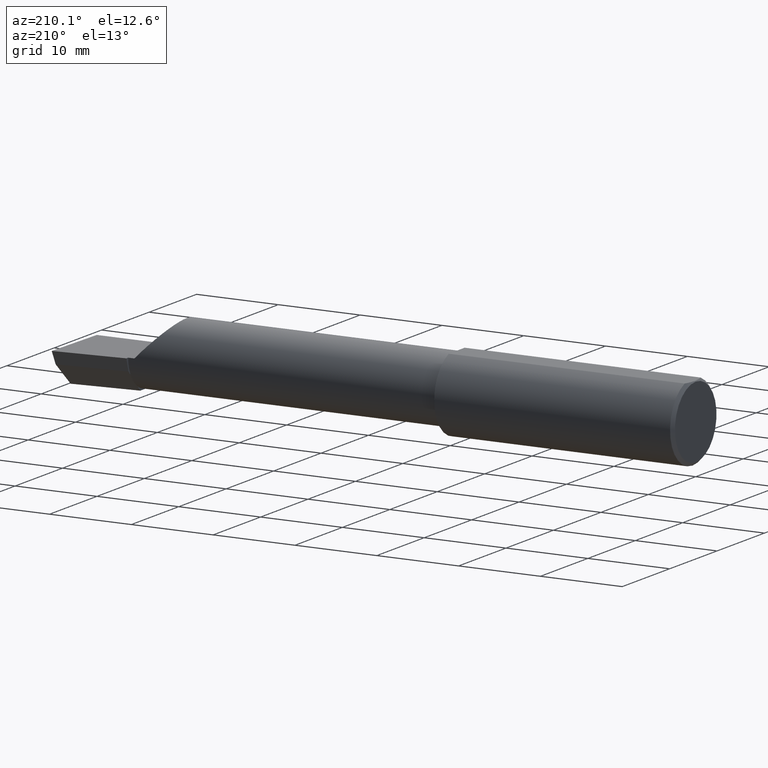
[diagram: clean part render]
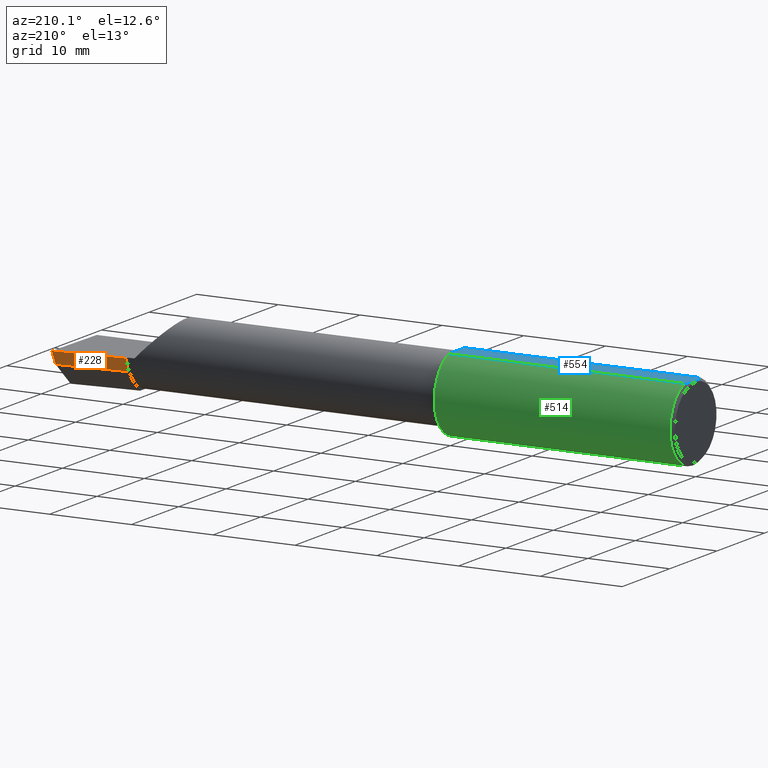
[diagram: same view with three faces highlighted in distinct colors, each labeled with its STEP entity id]
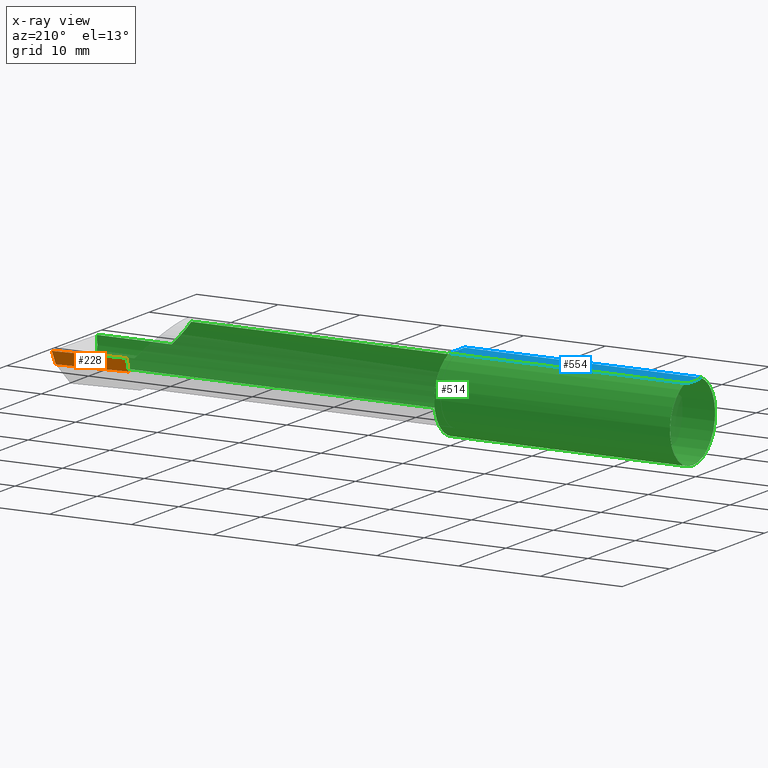
[diagram: x-ray of the same camera — body ghosted, the three highlighted faces saturated]
A machine part, auxiliary view with three faces highlighted in distinct colors.
The next image is the same camera in x-ray (body ghosted, the three faces saturated) — at least one of them is partly hidden behind the body in this view.
Their STEP definitions:

[orange] entity #228 — the highlighted planar face has unit normal (-0.0917, 0.9519, -0.2924).
#15 = DIRECTION ( 'NONE',  ( 0.9953961983671787417, 0.09584575252022435599, -1.409044964823803883E-16 ) ) ;
#30 = EDGE_LOOP ( 'NONE', ( #593, #498, #125, #168 ) ) ;
#54 = CARTESIAN_POINT ( 'NONE',  ( 3.000000000000013323, 0.1706500000000293615, 9.155799222047003664E-14 ) ) ;
#69 = DIRECTION ( 'NONE',  ( -1.671023757235059908E-18, -0.2936076258024052921, -0.9559260233253797923 ) ) ;
#78 = LINE ( 'NONE', #395, #242 ) ;
#84 = DIRECTION ( 'NONE',  ( 0.0000000000000000000, 0.2936076258024052366, 0.9559260233253797923 ) ) ;
#85 = VERTEX_POINT ( 'NONE', #253 ) ;
#91 = AXIS2_PLACEMENT_3D ( 'NONE', #521, #424, #84 ) ;
#102 = LINE ( 'NONE', #379, #212 ) ;
#104 = CARTESIAN_POINT ( 'NONE',  ( 2.992127980275562482, 0.1514633278254525761, -0.05999999999999999778 ) ) ;
#119 = EDGE_CURVE ( 'NONE', #153, #142, #411, .T. ) ;
#125 = ORIENTED_EDGE ( 'NONE', *, *, #515, .F. ) ;
#127 = CARTESIAN_POINT ( 'NONE',  ( 3.000188977433813520, 0.1711105994646681117, 0.001440373173037378914 ) ) ;
#128 = CARTESIAN_POINT ( 'NONE',  ( 2.659999999999999698, 0.1346188438362104778, -0.01072093908174515803 ) ) ;
#142 = VERTEX_POINT ( 'NONE', #54 ) ;
#145 = PLANE ( 'NONE',  #91 ) ;
#153 = VERTEX_POINT ( 'NONE', #104 ) ;
#168 = ORIENTED_EDGE ( 'NONE', *, *, #382, .T. ) ;
#212 = VECTOR ( 'NONE', #457, 39.37007874015748854 ) ;
#228 = ADVANCED_FACE ( 'NONE', ( #408 ), #145, .T. ) ;
#242 = VECTOR ( 'NONE', #15, 39.37007874015748143 ) ;
#253 = CARTESIAN_POINT ( 'NONE',  ( 2.659999999999999698, 0.1379117236128415691, 3.606893054134847731E-16 ) ) ;
#306 = VECTOR ( 'NONE', #69, 39.37007874015748854 ) ;
#314 = EDGE_CURVE ( 'NONE', #153, #324, #102, .T. ) ;
#324 = VERTEX_POINT ( 'NONE', #484 ) ;
#325 = DIRECTION ( 'NONE',  ( 0.1240019227989395123, 0.3022330132596639518, 0.9451342385281308323 ) ) ;
#342 = VECTOR ( 'NONE', #325, 39.37007874015748854 ) ;
#379 = CARTESIAN_POINT ( 'NONE',  ( 3.011712141217646188, 0.1533490680423129637, -0.06000000000000001166 ) ) ;
#382 = EDGE_CURVE ( 'NONE', #85, #142, #78, .T. ) ;
#395 = CARTESIAN_POINT ( 'NONE',  ( 0.8393181374772645809, -0.03739999999999999575, 2.375616991505627107E-16 ) ) ;
#408 = FACE_OUTER_BOUND ( 'NONE', #30, .T. ) ;
#411 = LINE ( 'NONE', #127, #342 ) ;
#424 = DIRECTION ( 'NONE',  ( -0.09165774897393341725, 0.9519021185660616613, -0.2923717047227295529 ) ) ;
#433 = LINE ( 'NONE', #128, #306 ) ;
#457 = DIRECTION ( 'NONE',  ( -0.9953961983671800740, -0.09584575252021031166, 0.0000000000000000000 ) ) ;
#484 = CARTESIAN_POINT ( 'NONE',  ( 2.659999999999999698, 0.1194830407249523191, -0.06000000000000001860 ) ) ;
#498 = ORIENTED_EDGE ( 'NONE', *, *, #314, .T. ) ;
#515 = EDGE_CURVE ( 'NONE', #85, #324, #433, .T. ) ;
#521 = CARTESIAN_POINT ( 'NONE',  ( 3.009953961983671267, 0.1716084575252019573, -6.829619984160658046E-17 ) ) ;
#593 = ORIENTED_EDGE ( 'NONE', *, *, #119, .F. ) ;

[blue] entity #554 — the highlighted planar face has unit normal (0, -0, -1).
#36 = ORIENTED_EDGE ( 'NONE', *, *, #568, .F. ) ;
#47 = FACE_OUTER_BOUND ( 'NONE', #541, .T. ) ;
#51 = CARTESIAN_POINT ( 'NONE',  ( 0.003000000000000218638, 2.334609607045083916E-17, 0.1753499999999999781 ) ) ;
#64 = B_SPLINE_CURVE_WITH_KNOTS ( 'NONE', 3,
 ( #130, #415, #506, #416, #220, #546 ),
 .UNSPECIFIED., .F., .F.,
 ( 4, 2, 4 ),
 ( 0.003480013901590607410, 0.004330767971208085432, 0.005181522040825563453 ),
 .UNSPECIFIED. ) ;
#74 = CARTESIAN_POINT ( 'NONE',  ( 0.01499999999999999424, 0.06597272163553677404, 0.1753499999999999226 ) ) ;
#76 = EDGE_CURVE ( 'NONE', #170, #332, #266, .T. ) ;
#87 = ORIENTED_EDGE ( 'NONE', *, *, #199, .F. ) ;
#108 = ORIENTED_EDGE ( 'NONE', *, *, #283, .F. ) ;
#117 = CARTESIAN_POINT ( 'NONE',  ( 0.003000000000000171800, -0.01126410975715119375, 0.1753500000000000059 ) ) ;
#130 = CARTESIAN_POINT ( 'NONE',  ( 0.003000000000000218638, 2.334609607045083916E-17, 0.1753499999999999781 ) ) ;
#132 = ORIENTED_EDGE ( 'NONE', *, *, #460, .F. ) ;
#146 = DIRECTION ( 'NONE',  ( 1.000000000000000000, 0.0000000000000000000, 0.0000000000000000000 ) ) ;
#147 = VERTEX_POINT ( 'NONE', #51 ) ;
#164 = PLANE ( 'NONE',  #409 ) ;
#166 = VECTOR ( 'NONE', #485, 39.37007874015748143 ) ;
#170 = VERTEX_POINT ( 'NONE', #432 ) ;
#199 = EDGE_CURVE ( 'NONE', #518, #170, #344, .T. ) ;
#211 = VERTEX_POINT ( 'NONE', #596 ) ;
#216 = DIRECTION ( 'NONE',  ( 0.0000000000000000000, -1.438723400918613551E-16, -1.000000000000000000 ) ) ;
#220 = CARTESIAN_POINT ( 'NONE',  ( 0.01125230581755091823, 0.05532998191409932431, 0.1753500000000000059 ) ) ;
#265 = CARTESIAN_POINT ( 'NONE',  ( 0.003000000000000218638, 2.334609607045083916E-17, 0.1753499999999999781 ) ) ;
#266 = LINE ( 'NONE', #476, #166 ) ;
#283 = EDGE_CURVE ( 'NONE', #332, #211, #294, .T. ) ;
#294 = LINE ( 'NONE', #339, #513 ) ;
#316 = CARTESIAN_POINT ( 'NONE',  ( 0.01128414053810044074, -0.05542038647445821781, 0.1753499999999999781 ) ) ;
#323 = CARTESIAN_POINT ( 'NONE',  ( 0.01499999999999997863, -0.06597272163553657975, 0.1753499999999999781 ) ) ;
#332 = VERTEX_POINT ( 'NONE', #357 ) ;
#339 = CARTESIAN_POINT ( 'NONE',  ( 0.0000000000000000000, -0.06597272163553671853, 0.1753499999999999226 ) ) ;
#344 = LINE ( 'NONE', #427, #571 ) ;
#357 = CARTESIAN_POINT ( 'NONE',  ( 1.150000000000000133, -0.06597272163553659363, 0.1753499999999999781 ) ) ;
#407 = ORIENTED_EDGE ( 'NONE', *, *, #76, .F. ) ;
#409 = AXIS2_PLACEMENT_3D ( 'NONE', #580, #216, #542 ) ;
#415 = CARTESIAN_POINT ( 'NONE',  ( 0.003000000000000172234, 0.01127363201155565098, 0.1753499999999999781 ) ) ;
#416 = CARTESIAN_POINT ( 'NONE',  ( 0.008244775919947433529, 0.04453482769755864185, 0.1753499999999999504 ) ) ;
#427 = CARTESIAN_POINT ( 'NONE',  ( 0.0000000000000000000, 0.06597272163553677404, 0.1753499999999999226 ) ) ;
#432 = CARTESIAN_POINT ( 'NONE',  ( 1.150000000000000133, 0.06597272163553680180, 0.1753499999999999781 ) ) ;
#441 = CARTESIAN_POINT ( 'NONE',  ( 0.004093196532652217806, -0.02240707710020815174, 0.1753499999999999504 ) ) ;
#460 = EDGE_CURVE ( 'NONE', #147, #518, #64, .T. ) ;
#476 = CARTESIAN_POINT ( 'NONE',  ( 1.150000000000000133, 0.2373500000000000332, 0.1753499999999999504 ) ) ;
#485 = DIRECTION ( 'NONE',  ( -5.691349986800549142E-18, -1.000000000000000000, 1.438723400918613551E-16 ) ) ;
#501 = B_SPLINE_CURVE_WITH_KNOTS ( 'NONE', 3,
 ( #323, #316, #576, #441, #117, #265 ),
 .UNSPECIFIED., .F., .F.,
 ( 4, 2, 4 ),
 ( 0.001779942938356815062, 0.002629978419973711019, 0.003480013901590607410 ),
 .UNSPECIFIED. ) ;
#506 = CARTESIAN_POINT ( 'NONE',  ( 0.004115035183746283340, 0.02255629470626750385, 0.1753499999999999781 ) ) ;
#512 = DIRECTION ( 'NONE',  ( -1.000000000000000000, -0.0000000000000000000, -0.0000000000000000000 ) ) ;
#513 = VECTOR ( 'NONE', #512, 39.37007874015748143 ) ;
#518 = VERTEX_POINT ( 'NONE', #74 ) ;
#541 = EDGE_LOOP ( 'NONE', ( #407, #87, #132, #36, #108 ) ) ;
#542 = DIRECTION ( 'NONE',  ( 0.0000000000000000000, 1.000000000000000000, -1.438723400918613551E-16 ) ) ;
#546 = CARTESIAN_POINT ( 'NONE',  ( 0.01499999999999999424, 0.06597272163553677404, 0.1753499999999999226 ) ) ;
#554 = ADVANCED_FACE ( 'NONE', ( #47 ), #164, .F. ) ;
#568 = EDGE_CURVE ( 'NONE', #211, #147, #501, .T. ) ;
#571 = VECTOR ( 'NONE', #146, 39.37007874015748143 ) ;
#576 = CARTESIAN_POINT ( 'NONE',  ( 0.008227791779583793277, -0.04447712204611815184, 0.1753499999999999781 ) ) ;
#580 = CARTESIAN_POINT ( 'NONE',  ( 3.000000000000000444, 0.2373500000000000332, 0.1753499999999999504 ) ) ;
#596 = CARTESIAN_POINT ( 'NONE',  ( 0.01499999999999997863, -0.06597272163553657975, 0.1753499999999999781 ) ) ;

[green] entity #514 — the highlighted cylindrical surface (partial cylindrical patch) has radius 4.7587 mm, axis along (-1, -0, -0).
#2 = CARTESIAN_POINT ( 'NONE',  ( 1.160000000000000142, -0.1454917112299473902, -0.1180346748349042768 ) ) ;
#3 =( BOUNDED_CURVE ( )  B_SPLINE_CURVE ( 3, ( #583, #493, #575, #405 ),
 .UNSPECIFIED., .F., .T. ) 
 B_SPLINE_CURVE_WITH_KNOTS ( ( 4, 4 ),
 ( 0.6791649766275665856, 1.360746882514762168 ),
 .UNSPECIFIED. ) 
 CURVE ( )  GEOMETRIC_REPRESENTATION_ITEM ( )  RATIONAL_B_SPLINE_CURVE ( ( 1.000000000000000000, 0.9616603987079550553, 0.9616603987079550553, 1.000000000000000000 ) ) 
 REPRESENTATION_ITEM ( '' )  );
#4 = CARTESIAN_POINT ( 'NONE',  ( 2.586590019116435268, -0.1873499999999999610, 0.04340998088356424339 ) ) ;
#13 = VERTEX_POINT ( 'NONE', #417 ) ;
#17 = EDGE_CURVE ( 'NONE', #322, #478, #63, .T. ) ;
#27 = CARTESIAN_POINT ( 'NONE',  ( 0.0000000000000000000, 0.0000000000000000000, 0.0000000000000000000 ) ) ;
#31 = CARTESIAN_POINT ( 'NONE',  ( 1.160000000000000142, -0.1454917112299473902, 0.1180346748349042768 ) ) ;
#32 = B_SPLINE_CURVE_WITH_KNOTS ( 'NONE', 3,
 ( #2, #533, #430, #94, #352, #99, #528, #475, #45, #564, #532, #248, #569, #97 ),
 .UNSPECIFIED., .F., .F.,
 ( 4, 2, 2, 2, 2, 2, 4 ),
 ( 1.967643395620002325E-07, 5.001319782656137654E-05, 9.982963131356075023E-05, 0.0001994624982875594840, 0.0003987282322355602585, 0.0007972597001315618074, 0.001594322635923565989 ),
 .UNSPECIFIED. ) ;
#34 = EDGE_CURVE ( 'NONE', #259, #329, #113, .T. ) ;
#38 = ORIENTED_EDGE ( 'NONE', *, *, #273, .F. ) ;
#45 = CARTESIAN_POINT ( 'NONE',  ( 1.154404192622242142, -0.1382376748423456703, -0.1264781021717274467 ) ) ;
#58 = EDGE_CURVE ( 'NONE', #310, #259, #116, .T. ) ;
#62 = DIRECTION ( 'NONE',  ( -1.000000000000000000, -0.0000000000000000000, -0.0000000000000000000 ) ) ;
#63 = LINE ( 'NONE', #219, #139 ) ;
#67 = ORIENTED_EDGE ( 'NONE', *, *, #244, .F. ) ;
#74 = CARTESIAN_POINT ( 'NONE',  ( 0.01499999999999999424, 0.06597272163553677404, 0.1753499999999999226 ) ) ;
#75 = CARTESIAN_POINT ( 'NONE',  ( 1.150000000000000133, -0.1013606951871667550, 0.1575627873933888867 ) ) ;
#81 = VECTOR ( 'NONE', #312, 39.37007874015748143 ) ;
#83 =( BOUNDED_CURVE ( )  B_SPLINE_CURVE ( 3, ( #98, #4, #191, #303 ),
 .UNSPECIFIED., .F., .T. ) 
 B_SPLINE_CURVE_WITH_KNOTS ( ( 4, 4 ),
 ( 4.712388980384689674, 5.393970886271887366 ),
 .UNSPECIFIED. ) 
 CURVE ( )  GEOMETRIC_REPRESENTATION_ITEM ( )  RATIONAL_B_SPLINE_CURVE ( ( 1.000000000000000000, 0.9616603987079549443, 0.9616603987079549443, 1.000000000000000000 ) ) 
 REPRESENTATION_ITEM ( '' )  );
#94 = CARTESIAN_POINT ( 'NONE',  ( 1.157909242887170453, -0.1445870704379424998, -0.1191421054870949042 ) ) ;
#95 = VERTEX_POINT ( 'NONE', #223 ) ;
#97 = CARTESIAN_POINT ( 'NONE',  ( 1.150000000000000133, -0.1013606951871667550, -0.1575627873933888867 ) ) ;
#98 = CARTESIAN_POINT ( 'NONE',  ( 2.629999999999999893, -0.1873499999999999888, -1.592040838891560883E-17 ) ) ;
#99 = CARTESIAN_POINT ( 'NONE',  ( 1.156664569472227955, -0.1431262185210695759, -0.1208975608635225463 ) ) ;
#107 = CARTESIAN_POINT ( 'NONE',  ( 2.511965325165093521, -0.1454917112299465853, 0.1180346748349052760 ) ) ;
#113 = LINE ( 'NONE', #326, #81 ) ;
#116 = B_SPLINE_CURVE_WITH_KNOTS ( 'NONE', 3,
 ( #431, #458, #307, #258, #510, #574, #572, #570, #552, #545, #537, #536, #534, #508 ),
 .UNSPECIFIED., .F., .F.,
 ( 4, 2, 2, 2, 2, 2, 4 ),
 ( 0.0006605532644857246925, 0.001446564801351223669, 0.001839570569783973699, 0.002036073454000349690, 0.002134324896108538011, 0.002183450617162631738, 0.002232576338216725898 ),
 .UNSPECIFIED. ) ;
#118 = CIRCLE ( 'NONE', #539, 0.1873499999999999888 ) ;
#139 = VECTOR ( 'NONE', #230, 39.37007874015748143 ) ;
#144 = DIRECTION ( 'NONE',  ( 0.0000000000000000000, 0.0000000000000000000, 1.000000000000000000 ) ) ;
#146 = DIRECTION ( 'NONE',  ( 1.000000000000000000, 0.0000000000000000000, 0.0000000000000000000 ) ) ;
#152 = DIRECTION ( 'NONE',  ( 1.000000000000000000, -5.691349986800549142E-18, 0.0000000000000000000 ) ) ;
#156 = EDGE_CURVE ( 'NONE', #524, #329, #83, .T. ) ;
#170 = VERTEX_POINT ( 'NONE', #432 ) ;
#174 = VECTOR ( 'NONE', #291, 39.37007874015748143 ) ;
#183 = CARTESIAN_POINT ( 'NONE',  ( 0.01499999999999999424, 0.0000000000000000000, 0.0000000000000000000 ) ) ;
#187 = ORIENTED_EDGE ( 'NONE', *, *, #17, .F. ) ;
#191 = CARTESIAN_POINT ( 'NONE',  ( 2.545676520271627385, -0.1728409665178087251, 0.08432347972837181405 ) ) ;
#192 = CYLINDRICAL_SURFACE ( 'NONE', #535, 0.1873499999999999888 ) ;
#199 = EDGE_CURVE ( 'NONE', #518, #170, #344, .T. ) ;
#208 = DIRECTION ( 'NONE',  ( 0.0000000000000000000, 1.000000000000000000, 0.0000000000000000000 ) ) ;
#211 = VERTEX_POINT ( 'NONE', #596 ) ;
#218 = CARTESIAN_POINT ( 'NONE',  ( 2.990625440078233499, -0.1873499999999999888, -6.699231446134777283E-17 ) ) ;
#219 = CARTESIAN_POINT ( 'NONE',  ( 1.910000000000000142, -0.1454917112299468074, -0.1180346748349050540 ) ) ;
#223 = CARTESIAN_POINT ( 'NONE',  ( 1.150000000000000133, -0.1013606951871667550, -0.1575627873933888867 ) ) ;
#230 = DIRECTION ( 'NONE',  ( -1.000000000000000000, 5.691349986800549142E-18, -0.0000000000000000000 ) ) ;
#244 = EDGE_CURVE ( 'NONE', #518, #13, #488, .T. ) ;
#248 = CARTESIAN_POINT ( 'NONE',  ( 1.150483388365424187, -0.1180160148311112794, -0.1458664675357409513 ) ) ;
#249 = EDGE_CURVE ( 'NONE', #445, #524, #562, .T. ) ;
#251 = EDGE_CURVE ( 'NONE', #13, #211, #257, .T. ) ;
#257 = CIRCLE ( 'NONE', #595, 0.1873499999999999888 ) ;
#258 = CARTESIAN_POINT ( 'NONE',  ( 1.152149571221040114, -0.1293863363941691047, 0.1355911774285935012 ) ) ;
#259 = VERTEX_POINT ( 'NONE', #31 ) ;
#273 = EDGE_CURVE ( 'NONE', #95, #170, #347, .T. ) ;
#283 = EDGE_CURVE ( 'NONE', #332, #211, #294, .T. ) ;
#284 = DIRECTION ( 'NONE',  ( 1.000000000000000000, -5.691349986800549142E-18, 0.0000000000000000000 ) ) ;
#288 = DIRECTION ( 'NONE',  ( -1.000000000000000000, -0.0000000000000000000, -0.0000000000000000000 ) ) ;
#291 = DIRECTION ( 'NONE',  ( -1.000000000000000000, -0.0000000000000000000, -0.0000000000000000000 ) ) ;
#292 = AXIS2_PLACEMENT_3D ( 'NONE', #590, #284, #551 ) ;
#294 = LINE ( 'NONE', #339, #513 ) ;
#303 = CARTESIAN_POINT ( 'NONE',  ( 2.511965325165093521, -0.1454917112299465853, 0.1180346748349052760 ) ) ;
#307 = CARTESIAN_POINT ( 'NONE',  ( 1.150493306168247853, -0.1180879943980271130, 0.1458023451353276934 ) ) ;
#310 = VERTEX_POINT ( 'NONE', #75 ) ;
#312 = DIRECTION ( 'NONE',  ( 1.000000000000000000, -5.691349986800549142E-18, 0.0000000000000000000 ) ) ;
#322 = VERTEX_POINT ( 'NONE', #331 ) ;
#326 = CARTESIAN_POINT ( 'NONE',  ( 1.910000000000000142, -0.1454917112299468074, 0.1180346748349050540 ) ) ;
#329 = VERTEX_POINT ( 'NONE', #107 ) ;
#331 = CARTESIAN_POINT ( 'NONE',  ( 2.977223734188808368, -0.1454917112299468074, -0.1180346748349050540 ) ) ;
#332 = VERTEX_POINT ( 'NONE', #357 ) ;
#339 = CARTESIAN_POINT ( 'NONE',  ( 0.0000000000000000000, -0.06597272163553671853, 0.1753499999999999226 ) ) ;
#344 = LINE ( 'NONE', #427, #571 ) ;
#347 = CIRCLE ( 'NONE', #292, 0.1873499999999999888 ) ;
#349 = EDGE_LOOP ( 'NONE', ( #187, #387, #481, #449, #393, #365, #550, #472, #491, #67, #494, #38, #483 ) ) ;
#352 = CARTESIAN_POINT ( 'NONE',  ( 1.157567572594822014, -0.1442269357022595289, -0.1195781817710020872 ) ) ;
#356 = EDGE_CURVE ( 'NONE', #478, #95, #32, .T. ) ;
#357 = CARTESIAN_POINT ( 'NONE',  ( 1.150000000000000133, -0.06597272163553659363, 0.1753499999999999781 ) ) ;
#365 = ORIENTED_EDGE ( 'NONE', *, *, #58, .F. ) ;
#366 = FACE_OUTER_BOUND ( 'NONE', #349, .T. ) ;
#387 = ORIENTED_EDGE ( 'NONE', *, *, #591, .T. ) ;
#393 = ORIENTED_EDGE ( 'NONE', *, *, #34, .F. ) ;
#398 = CARTESIAN_POINT ( 'NONE',  ( 1.150000000000000133, 0.0000000000000000000, 0.0000000000000000000 ) ) ;
#405 = CARTESIAN_POINT ( 'NONE',  ( 2.990625440078233499, -0.1873499999999999888, -6.699231446134777283E-17 ) ) ;
#417 = CARTESIAN_POINT ( 'NONE',  ( 0.01499999999999999424, 0.0000000000000000000, -0.1873499999999999888 ) ) ;
#427 = CARTESIAN_POINT ( 'NONE',  ( 0.0000000000000000000, 0.06597272163553677404, 0.1753499999999999226 ) ) ;
#430 = CARTESIAN_POINT ( 'NONE',  ( 1.158770022656896659, -0.1452078353828897828, -0.1183847404910792489 ) ) ;
#431 = CARTESIAN_POINT ( 'NONE',  ( 1.150000000000000133, -0.1013606951871667550, 0.1575627873933888867 ) ) ;
#432 = CARTESIAN_POINT ( 'NONE',  ( 1.150000000000000133, 0.06597272163553680180, 0.1753499999999999781 ) ) ;
#445 = VERTEX_POINT ( 'NONE', #218 ) ;
#449 = ORIENTED_EDGE ( 'NONE', *, *, #156, .T. ) ;
#452 = CARTESIAN_POINT ( 'NONE',  ( 1.160000000000000142, -0.1454917112299473902, -0.1180346748349042768 ) ) ;
#458 = CARTESIAN_POINT ( 'NONE',  ( 1.150000000000000133, -0.1100056335683322478, 0.1520014681335473961 ) ) ;
#463 = DIRECTION ( 'NONE',  ( -1.000000000000000000, -0.0000000000000000000, -0.0000000000000000000 ) ) ;
#472 = ORIENTED_EDGE ( 'NONE', *, *, #283, .T. ) ;
#473 = AXIS2_PLACEMENT_3D ( 'NONE', #183, #463, #144 ) ;
#475 = CARTESIAN_POINT ( 'NONE',  ( 1.154992410154055626, -0.1399157128067689548, -0.1246181391956558832 ) ) ;
#478 = VERTEX_POINT ( 'NONE', #452 ) ;
#481 = ORIENTED_EDGE ( 'NONE', *, *, #249, .T. ) ;
#483 = ORIENTED_EDGE ( 'NONE', *, *, #356, .F. ) ;
#488 = CIRCLE ( 'NONE', #473, 0.1873499999999999888 ) ;
#491 = ORIENTED_EDGE ( 'NONE', *, *, #251, .F. ) ;
#493 = CARTESIAN_POINT ( 'NONE',  ( 2.980648201915109485, -0.1728409665178087529, -0.08432347972837171690 ) ) ;
#494 = ORIENTED_EDGE ( 'NONE', *, *, #199, .T. ) ;
#499 = CARTESIAN_POINT ( 'NONE',  ( 2.629999999999999893, -0.1873499999999999888, -1.592040838891560883E-17 ) ) ;
#508 = CARTESIAN_POINT ( 'NONE',  ( 1.160000000000000142, -0.1454917112299473902, 0.1180346748349042768 ) ) ;
#510 = CARTESIAN_POINT ( 'NONE',  ( 1.152845212421890642, -0.1330145888620369587, 0.1320338710448769326 ) ) ;
#512 = DIRECTION ( 'NONE',  ( -1.000000000000000000, -0.0000000000000000000, -0.0000000000000000000 ) ) ;
#513 = VECTOR ( 'NONE', #512, 39.37007874015748143 ) ;
#514 = ADVANCED_FACE ( 'NONE', ( #366 ), #192, .T. ) ;
#518 = VERTEX_POINT ( 'NONE', #74 ) ;
#520 = CARTESIAN_POINT ( 'NONE',  ( 5.044671737413194975E-32, -0.1873499999999999610, 3.563723795045361633E-16 ) ) ;
#524 = VERTEX_POINT ( 'NONE', #499 ) ;
#528 = CARTESIAN_POINT ( 'NONE',  ( 1.156208682939483090, -0.1423361566194931982, -0.1218275716760972571 ) ) ;
#532 = CARTESIAN_POINT ( 'NONE',  ( 1.152152469637250709, -0.1294082664154932449, -0.1355718222394677042 ) ) ;
#533 = CARTESIAN_POINT ( 'NONE',  ( 1.159335809113331450, -0.1454917112299472515, -0.1180346748349044989 ) ) ;
#534 = CARTESIAN_POINT ( 'NONE',  ( 1.159343186359710121, -0.1454917112302233917, 0.1180346748345658947 ) ) ;
#535 = AXIS2_PLACEMENT_3D ( 'NONE', #27, #62, #586 ) ;
#536 = CARTESIAN_POINT ( 'NONE',  ( 1.158780002058964254, -0.1452129146512420033, 0.1183784924451689036 ) ) ;
#537 = CARTESIAN_POINT ( 'NONE',  ( 1.157921033727479010, -0.1445976381173504355, 0.1191292621734205831 ) ) ;
#539 = AXIS2_PLACEMENT_3D ( 'NONE', #398, #152, #208 ) ;
#545 = CARTESIAN_POINT ( 'NONE',  ( 1.157580800664965714, -0.1442412736056278566, 0.1195608849622512987 ) ) ;
#550 = ORIENTED_EDGE ( 'NONE', *, *, #557, .F. ) ;
#551 = DIRECTION ( 'NONE',  ( 0.0000000000000000000, 1.000000000000000000, 0.0000000000000000000 ) ) ;
#552 = CARTESIAN_POINT ( 'NONE',  ( 1.156674049009441818, -0.1431412424162813724, 0.1208797671938516005 ) ) ;
#553 = DIRECTION ( 'NONE',  ( 0.0000000000000000000, 0.0000000000000000000, 1.000000000000000000 ) ) ;
#557 = EDGE_CURVE ( 'NONE', #332, #310, #118, .T. ) ;
#562 = LINE ( 'NONE', #520, #174 ) ;
#564 = CARTESIAN_POINT ( 'NONE',  ( 1.152858161161656181, -0.1330631366558205908, -0.1319833113027339688 ) ) ;
#569 = CARTESIAN_POINT ( 'NONE',  ( 1.150000000000000355, -0.1099295023601660481, -0.1520504436074701926 ) ) ;
#570 = CARTESIAN_POINT ( 'NONE',  ( 1.156216587669451235, -0.1423502170013176138, 0.1218111458006537057 ) ) ;
#571 = VECTOR ( 'NONE', #146, 39.37007874015748143 ) ;
#572 = CARTESIAN_POINT ( 'NONE',  ( 1.154997648858496984, -0.1399294360413342042, 0.1246027428089586525 ) ) ;
#574 = CARTESIAN_POINT ( 'NONE',  ( 1.154402240695038939, -0.1382337250035453602, 0.1264828452200225661 ) ) ;
#575 = CARTESIAN_POINT ( 'NONE',  ( 2.985293537526804375, -0.1873500000000000443, -0.04340998088356425727 ) ) ;
#583 = CARTESIAN_POINT ( 'NONE',  ( 2.977223734188808368, -0.1454917112299468074, -0.1180346748349050540 ) ) ;
#586 = DIRECTION ( 'NONE',  ( 0.0000000000000000000, 0.0000000000000000000, 1.000000000000000000 ) ) ;
#590 = CARTESIAN_POINT ( 'NONE',  ( 1.150000000000000133, 0.0000000000000000000, 0.0000000000000000000 ) ) ;
#591 = EDGE_CURVE ( 'NONE', #322, #445, #3, .T. ) ;
#594 = CARTESIAN_POINT ( 'NONE',  ( 0.01499999999999999424, 0.0000000000000000000, 0.0000000000000000000 ) ) ;
#595 = AXIS2_PLACEMENT_3D ( 'NONE', #594, #288, #553 ) ;
#596 = CARTESIAN_POINT ( 'NONE',  ( 0.01499999999999997863, -0.06597272163553657975, 0.1753499999999999781 ) ) ;